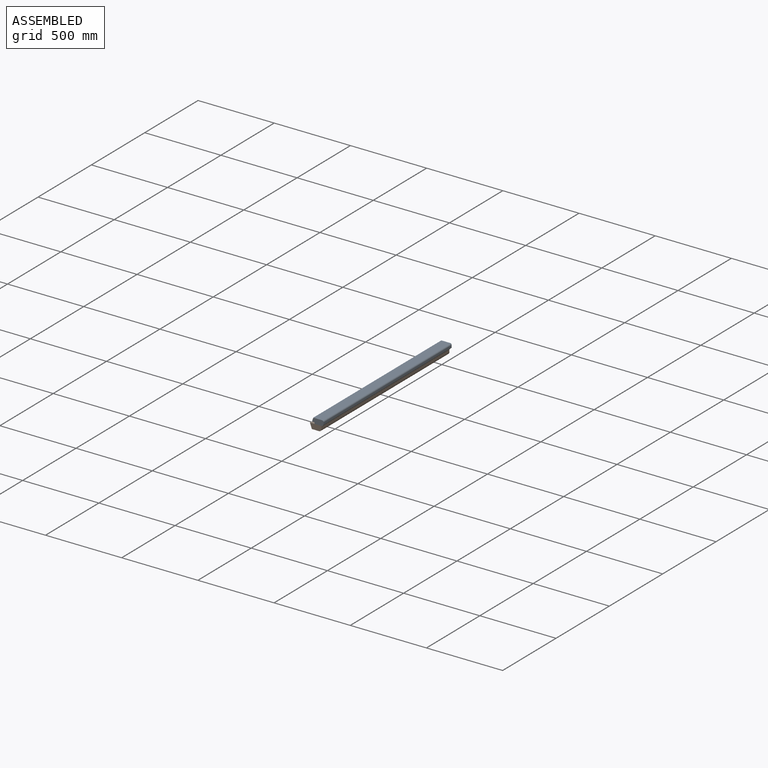
[diagram: assembled view]
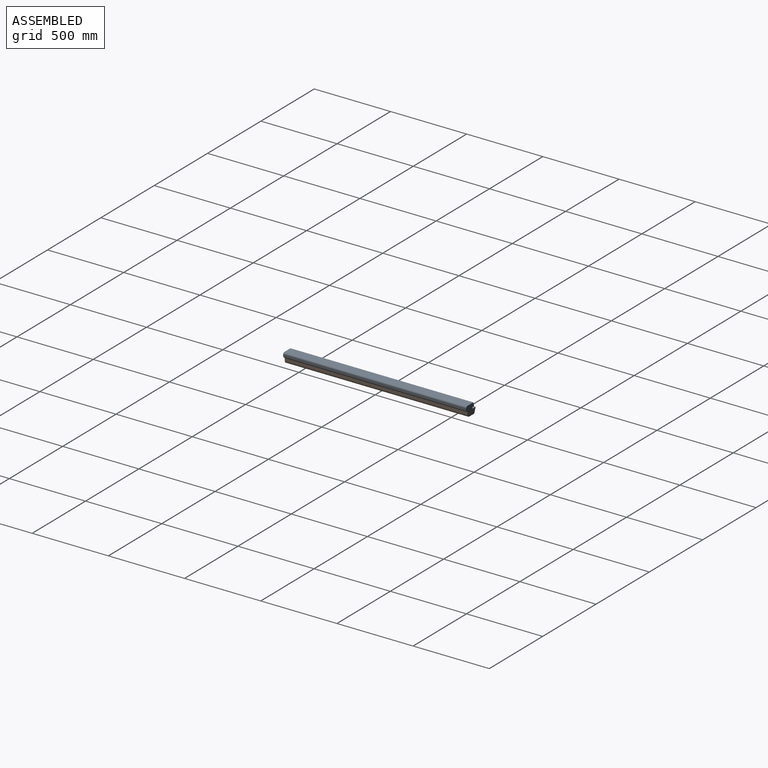
[diagram: assembled view, second angle]
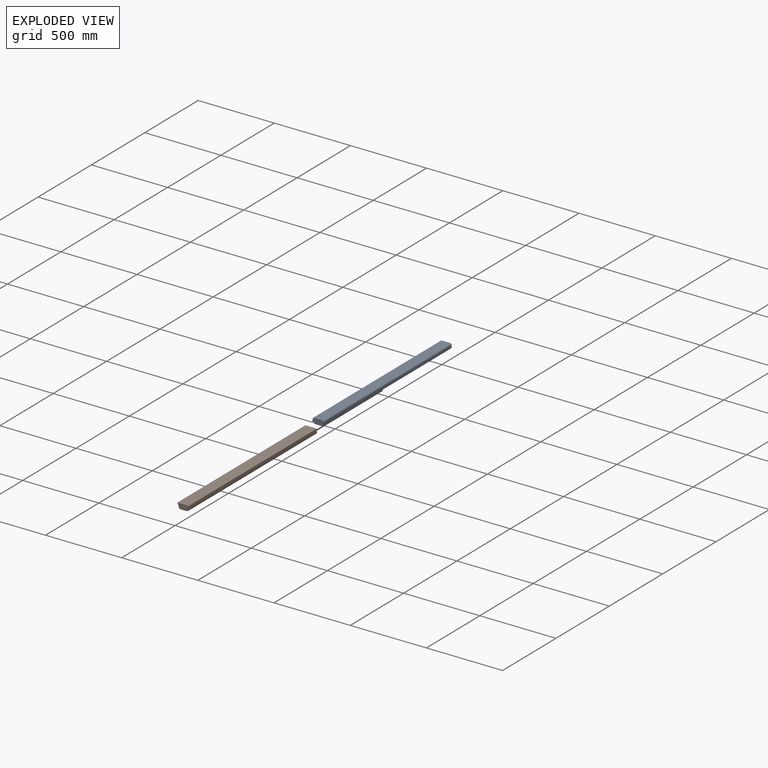
[diagram: exploded view]
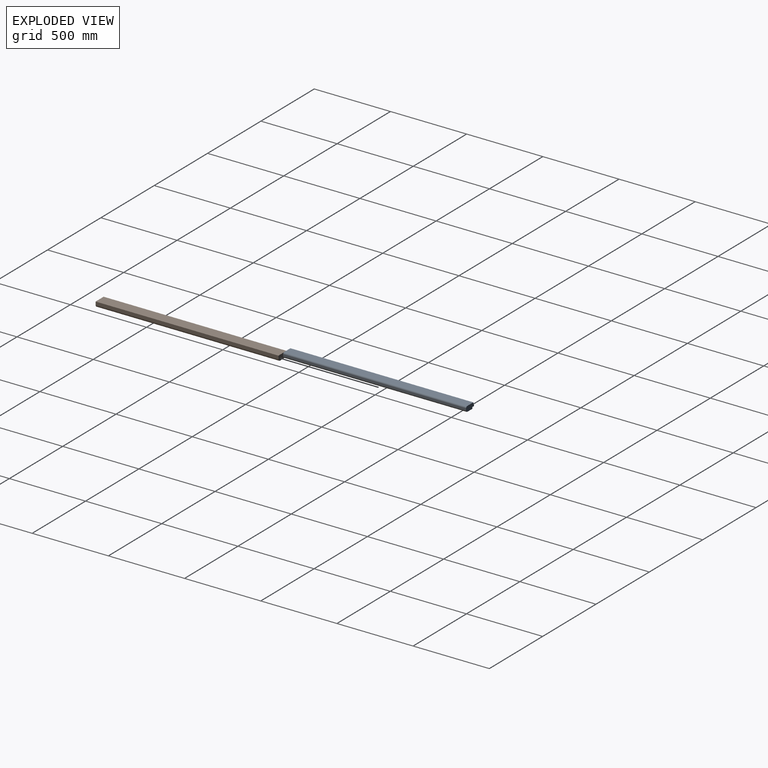
[diagram: exploded view, second angle]
ASSEMBLY  parts=2 mates=3
PART A: 11 faces, bbox 75x1200x35 mm
  f0: plane 1200x5mm, normal (-1,0,0), area 6000mm2, adj f2,f3,f6,f8
  f1: plane 1200x50mm, normal (0,0,-1), area 60000mm2, adj f2,f3,f7,f9
  f2: plane 75x35mm, normal (0,-1,0), area 2330.7mm2, adj f0,f1,f4,f5,f6,f7,f8,f9
  f3: plane 75x35mm, normal (0,1,0), area 2330.7mm2, adj f0,f1,f4,f5,f6,f7,f8,f9
  f4: plane 1200x15mm, normal (1,0,0), area 18000mm2, adj f2,f3,f9,f10
  f5: plane 1200x57.72mm, normal (0,0,1), area 69264.7mm2, adj f2,f3,f8,f10
  f6: plane 1200x15mm, normal (0,0,-1), area 18000mm2, adj f0,f2,f3,f7
  f7: plane 1200x10mm, normal (-1,0,0), area 12000mm2, adj f1,f2,f3,f6
  f8: plane 1200x20mm, normal (-0.94,0,0.34), area 25540.3mm2, adj f0,f2,f3,f5
  f9: plane 1200x10mm, normal (0.71,0,-0.71), area 16970.6mm2, adj f1,f2,f3,f4
  f10: cylinder r=10mm len=1200mm, axis (0,-1,0), area 18849.6mm2, adj f2,f3,f4,f5
PART B: 7 faces, bbox 75x1200x35 mm
  f0: plane 1200x47.26mm, normal (0,0,-1), area 56713.3mm2, adj f3,f4,f5,f6
  f1: plane 1200x20mm, normal (1,0,0), area 24000mm2, adj f2,f3,f4,f6
  f2: plane 1200x75mm, normal (0,0,1), area 90000mm2, adj f1,f3,f4,f5
  f3: plane 75x35mm, normal (0,-1,0), area 2353.8mm2, adj f0,f1,f2,f5,f6
  f4: plane 75x35mm, normal (0,1,0), area 2353.8mm2, adj f0,f1,f2,f5,f6
  f5: plane 1200x35mm, normal (-0.94,0,-0.34), area 44695.5mm2, adj f0,f2,f3,f4
  f6: cylinder r=15mm len=1200mm, axis (0,1,0), area 28274.3mm2, adj f0,f1,f3,f4
PLACE A t=(-77.01,595.58,-23.76)mm
PLACE B t=(-92.01,595.58,-58.76)mm
MATE fastened B.f3 <-> A.f2  axis (0,-1,0) through (-17.01,-604.42,-23.76)mm
MATE planar A.f2 <-> B.f3  axis (0,-1,0) through (-37.55,-604.42,-5.63)mm
MATE planar A.f1 <-> B.f2  axis (0,0,-1) through (-37.01,-4.42,-23.76)mm
